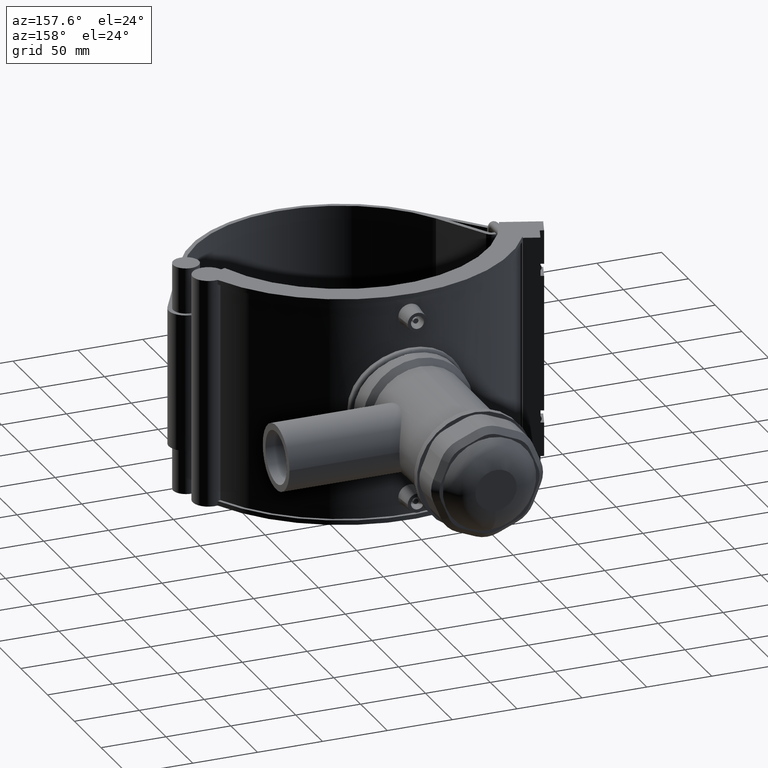
[diagram: clean part render]
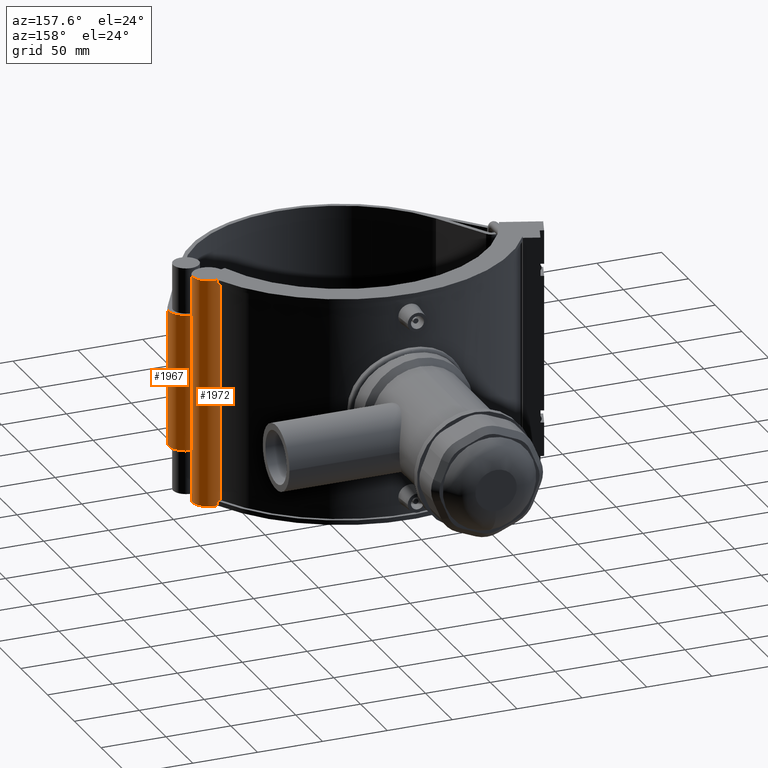
[diagram: same view with one multi-face feature highlighted, each face labeled with its STEP entity id]
A machine part, auxiliary view. The highlighted faces form ONE feature: a constant-radius fillet chain: 2 tangent blend faces with common blend radius 12.7211 mm. The faces share edges in the B-rep.
Their STEP definitions:
[1] entity #1972 (Cylinder):
#188=LINE('',#3607,#349);
#195=LINE('',#3629,#356);
#196=LINE('',#3631,#357);
#197=LINE('',#3635,#358);
#198=LINE('',#3638,#359);
#349=VECTOR('',#2683,105.6);
#356=VECTOR('',#2716,176.);
#357=VECTOR('',#2717,3.52);
#358=VECTOR('',#2720,168.96);
#359=VECTOR('',#2723,3.52);
#384=FACE_BOUND('',#696,.T.);
#442=CYLINDRICAL_SURFACE('',#2170,12.1153846153846);
#551=FACE_OUTER_BOUND('',#695,.T.);
#695=EDGE_LOOP('',(#1731,#1732,#1733,#1734,#1735,#1736,#1737,#1738));
#696=EDGE_LOOP('',(#1739,#1740));
#794=CIRCLE('',#2146,12.1153846153846);
#797=CIRCLE('',#2150,12.1153846153846);
#801=CIRCLE('',#2171,12.1153846153846);
#802=CIRCLE('',#2172,12.1153846153846);
#889=VERTEX_POINT('',#3344);
#909=VERTEX_POINT('',#3386);
#971=VERTEX_POINT('',#3582);
#972=VERTEX_POINT('',#3584);
#973=VERTEX_POINT('',#3588);
#974=VERTEX_POINT('',#3590);
#978=VERTEX_POINT('',#3630);
#979=VERTEX_POINT('',#3632);
#980=VERTEX_POINT('',#3634);
#981=VERTEX_POINT('',#3636);
#1218=EDGE_CURVE('',#971,#972,#794,.T.);
#1221=EDGE_CURVE('',#973,#974,#797,.T.);
#1230=EDGE_CURVE('',#889,#909,#188,.T.);
#1239=EDGE_CURVE('',#974,#971,#195,.T.);
#1240=EDGE_CURVE('',#978,#973,#196,.T.);
#1241=EDGE_CURVE('',#979,#978,#801,.T.);
#1242=EDGE_CURVE('',#980,#979,#197,.T.);
#1243=EDGE_CURVE('',#981,#980,#802,.T.);
#1244=EDGE_CURVE('',#972,#981,#198,.T.);
#1731=ORIENTED_EDGE('',*,*,#1239,.F.);
#1732=ORIENTED_EDGE('',*,*,#1221,.F.);
#1733=ORIENTED_EDGE('',*,*,#1240,.F.);
#1734=ORIENTED_EDGE('',*,*,#1241,.F.);
#1735=ORIENTED_EDGE('',*,*,#1242,.F.);
#1736=ORIENTED_EDGE('',*,*,#1243,.F.);
#1737=ORIENTED_EDGE('',*,*,#1244,.F.);
#1738=ORIENTED_EDGE('',*,*,#1218,.F.);
#1739=ORIENTED_EDGE('',*,*,#1230,.T.);
#1740=ORIENTED_EDGE('',*,*,#1230,.F.);
#1972=ADVANCED_FACE('',(#551,#384),#442,.T.);
#2146=AXIS2_PLACEMENT_3D('',#3585,#2652,#2653);
#2150=AXIS2_PLACEMENT_3D('',#3591,#2660,#2661);
#2170=AXIS2_PLACEMENT_3D('',#3628,#2714,#2715);
#2171=AXIS2_PLACEMENT_3D('',#3633,#2718,#2719);
#2172=AXIS2_PLACEMENT_3D('',#3637,#2721,#2722);
#2652=DIRECTION('center_axis',(0.,0.,1.));
#2653=DIRECTION('ref_axis',(-1.,0.,0.));
#2660=DIRECTION('center_axis',(0.,0.,-1.));
#2661=DIRECTION('ref_axis',(-1.,0.,0.));
#2683=DIRECTION('',(0.,0.,1.));
#2714=DIRECTION('center_axis',(0.,0.,1.));
#2715=DIRECTION('ref_axis',(-1.,0.,0.));
#2716=DIRECTION('',(0.,0.,1.));
#2717=DIRECTION('',(0.,0.,-1.));
#2718=DIRECTION('center_axis',(0.,0.,-1.));
#2719=DIRECTION('ref_axis',(-1.,0.,0.));
#2720=DIRECTION('',(0.,0.,-1.));
#2721=DIRECTION('center_axis',(0.,0.,1.));
#2722=DIRECTION('ref_axis',(-1.,0.,0.));
#2723=DIRECTION('',(0.,0.,-1.));
#3344=CARTESIAN_POINT('',(123.949690676323,32.2455886969886,-52.8));
#3386=CARTESIAN_POINT('',(123.949690676323,32.2455886969886,52.8));
#3582=CARTESIAN_POINT('',(109.130841094733,39.7203777989176,88.));
#3584=CARTESIAN_POINT('',(118.326455748415,55.7800510489045,88.));
#3585=CARTESIAN_POINT('Origin',(120.515578615793,43.864083381517,88.));
#3588=CARTESIAN_POINT('',(118.326455748415,55.7800510489045,-88.));
#3590=CARTESIAN_POINT('',(109.130841094733,39.7203777989176,-88.));
#3591=CARTESIAN_POINT('Origin',(120.515578615793,43.864083381517,-88.));
#3607=CARTESIAN_POINT('',(123.949690676323,32.2455886969886,0.));
#3628=CARTESIAN_POINT('Origin',(120.515578615793,43.864083381517,0.));
#3629=CARTESIAN_POINT('',(109.130841094733,39.7203777989176,0.));
#3630=CARTESIAN_POINT('',(118.326455748415,55.7800510489044,-84.48));
#3631=CARTESIAN_POINT('',(118.326455748415,55.7800510489045,0.));
#3632=CARTESIAN_POINT('',(115.838757280186,55.0403925474944,-84.48));
#3633=CARTESIAN_POINT('Origin',(120.515578615793,43.864083381517,-84.48));
#3634=CARTESIAN_POINT('',(115.838757280186,55.0403925474944,84.48));
#3635=CARTESIAN_POINT('',(115.838757280186,55.0403925474943,0.));
#3636=CARTESIAN_POINT('',(118.326455748415,55.7800510489044,84.48));
#3637=CARTESIAN_POINT('Origin',(120.515578615793,43.864083381517,84.48));
#3638=CARTESIAN_POINT('',(118.326455748415,55.7800510489045,0.));
[2] entity #1967 (Cylinder):
#188=LINE('',#3607,#349);
#189=LINE('',#3609,#350);
#349=VECTOR('',#2683,105.6);
#350=VECTOR('',#2686,105.6);
#439=CYLINDRICAL_SURFACE('',#2163,13.3269230769231);
#546=FACE_OUTER_BOUND('',#688,.T.);
#688=EDGE_LOOP('',(#1715,#1716,#1717,#1718));
#768=CIRCLE('',#2081,13.3269230769231);
#778=CIRCLE('',#2092,13.3269230769231);
#889=VERTEX_POINT('',#3344);
#890=VERTEX_POINT('',#3346);
#908=VERTEX_POINT('',#3384);
#909=VERTEX_POINT('',#3386);
#1103=EDGE_CURVE('',#889,#890,#768,.T.);
#1123=EDGE_CURVE('',#908,#909,#778,.T.);
#1230=EDGE_CURVE('',#889,#909,#188,.T.);
#1231=EDGE_CURVE('',#890,#908,#189,.T.);
#1715=ORIENTED_EDGE('',*,*,#1230,.T.);
#1716=ORIENTED_EDGE('',*,*,#1123,.F.);
#1717=ORIENTED_EDGE('',*,*,#1231,.F.);
#1718=ORIENTED_EDGE('',*,*,#1103,.F.);
#1967=ADVANCED_FACE('',(#546),#439,.T.);
#2081=AXIS2_PLACEMENT_3D('',#3347,#2443,#2444);
#2092=AXIS2_PLACEMENT_3D('',#3387,#2475,#2476);
#2163=AXIS2_PLACEMENT_3D('',#3619,#2700,#2701);
#2443=DIRECTION('center_axis',(0.,0.,-1.));
#2444=DIRECTION('ref_axis',(0.333937766224141,-0.942595124265573,0.));
#2475=DIRECTION('center_axis',(0.,0.,1.));
#2476=DIRECTION('ref_axis',(0.333937766224141,-0.942595124265573,0.));
#2683=DIRECTION('',(0.,0.,1.));
#2686=DIRECTION('',(0.,0.,1.));
#2700=DIRECTION('center_axis',(0.,0.,1.));
#2701=DIRECTION('ref_axis',(0.333937766224141,-0.942595124265573,0.));
#3344=CARTESIAN_POINT('',(123.949690676323,32.2455886969886,-52.8));
#3346=CARTESIAN_POINT('',(139.405466655161,13.0445520356437,-52.8));
#3347=CARTESIAN_POINT('Origin',(127.727213942907,19.4652445440072,-52.8));
#3384=CARTESIAN_POINT('',(139.405466655161,13.0445520356437,52.8));
#3386=CARTESIAN_POINT('',(123.949690676323,32.2455886969886,52.8));
#3387=CARTESIAN_POINT('Origin',(127.727213942907,19.4652445440072,52.8));
#3607=CARTESIAN_POINT('',(123.949690676323,32.2455886969886,0.));
#3609=CARTESIAN_POINT('',(139.405466655161,13.0445520356437,0.));
#3619=CARTESIAN_POINT('Origin',(127.727213942907,19.4652445440072,0.));